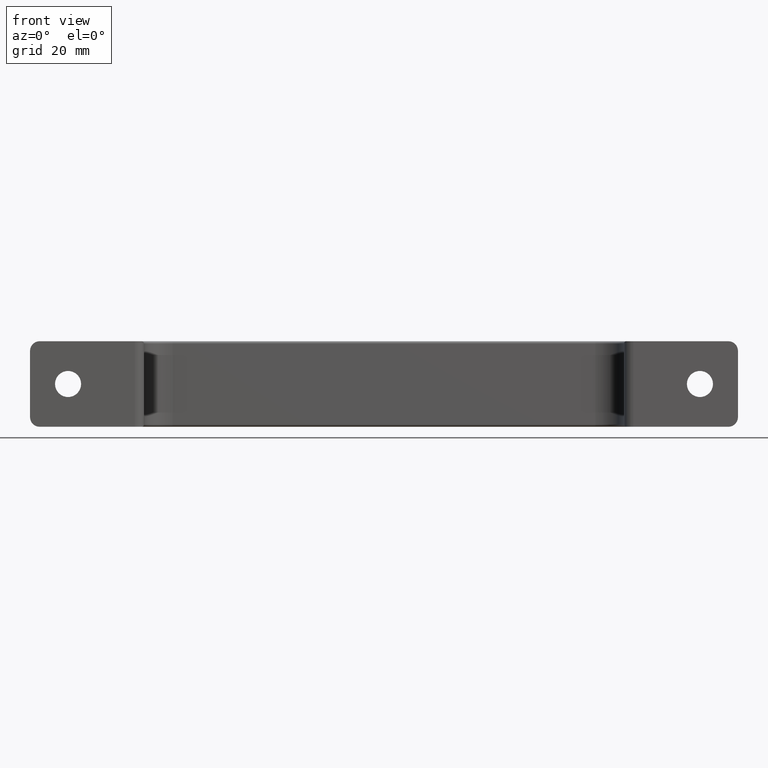
[diagram: clean part render]
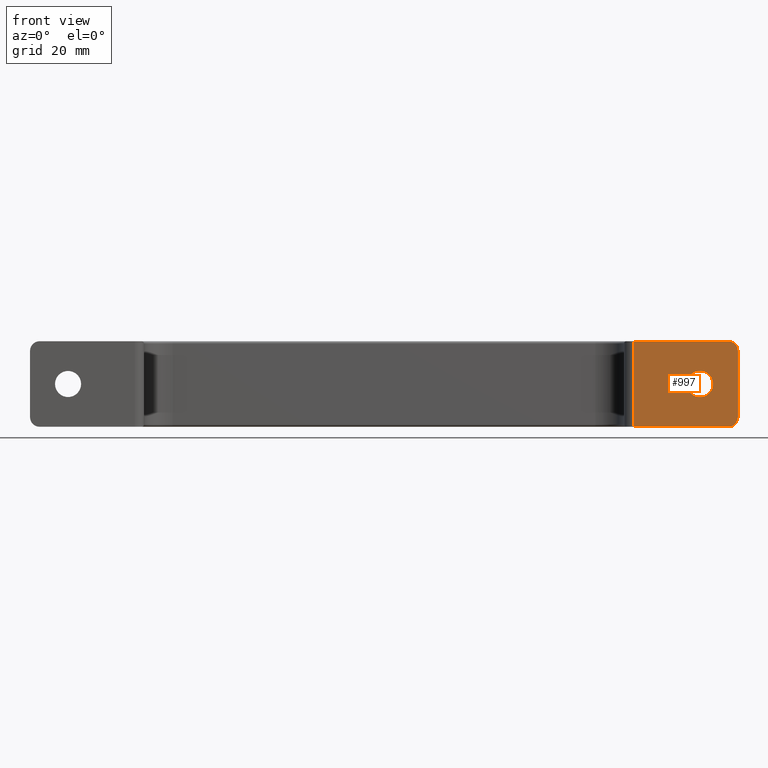
[diagram: same view with one face highlighted and labeled with its STEP entity id]
A machine part, front view. The second image highlights one B-rep face of the part: STEP entity #997.
In plain terms, the highlighted planar face has unit normal (-0, 1, 0).
Its self-contained STEP definition (entity closure, byte-faithful):
#23=PLANE('',#1099);
#50=LINE('',#1546,#116);
#74=LINE('',#1689,#140);
#75=LINE('',#1691,#141);
#76=LINE('',#1694,#142);
#116=VECTOR('',#1192,18.);
#140=VECTOR('',#1326,14.);
#141=VECTOR('',#1329,20.);
#142=VECTOR('',#1332,20.);
#216=FACE_BOUND('',#315,.T.);
#247=FACE_OUTER_BOUND('',#314,.T.);
#314=EDGE_LOOP('',(#778,#779,#780,#781,#782,#783));
#315=EDGE_LOOP('',(#784));
#359=CIRCLE('',#1041,2.75);
#394=CIRCLE('',#1097,2.);
#395=CIRCLE('',#1100,2.);
#437=VERTEX_POINT('',#1526);
#441=VERTEX_POINT('',#1543);
#442=VERTEX_POINT('',#1545);
#476=VERTEX_POINT('',#1681);
#477=VERTEX_POINT('',#1683);
#478=VERTEX_POINT('',#1687);
#479=VERTEX_POINT('',#1692);
#527=EDGE_CURVE('',#437,#437,#359,.T.);
#531=EDGE_CURVE('',#442,#441,#50,.T.);
#587=EDGE_CURVE('',#477,#476,#394,.T.);
#590=EDGE_CURVE('',#478,#476,#74,.T.);
#591=EDGE_CURVE('',#441,#477,#75,.T.);
#592=EDGE_CURVE('',#478,#479,#395,.T.);
#593=EDGE_CURVE('',#479,#442,#76,.T.);
#778=ORIENTED_EDGE('',*,*,#531,.T.);
#779=ORIENTED_EDGE('',*,*,#591,.T.);
#780=ORIENTED_EDGE('',*,*,#587,.T.);
#781=ORIENTED_EDGE('',*,*,#590,.F.);
#782=ORIENTED_EDGE('',*,*,#592,.T.);
#783=ORIENTED_EDGE('',*,*,#593,.T.);
#784=ORIENTED_EDGE('',*,*,#527,.F.);
#997=ADVANCED_FACE('',(#247,#216),#23,.F.);
#1041=AXIS2_PLACEMENT_3D('',#1527,#1185,#1186);
#1097=AXIS2_PLACEMENT_3D('',#1684,#1320,#1321);
#1099=AXIS2_PLACEMENT_3D('',#1690,#1327,#1328);
#1100=AXIS2_PLACEMENT_3D('',#1693,#1330,#1331);
#1185=DIRECTION('center_axis',(2.71170936169723E-31,-1.,0.));
#1186=DIRECTION('ref_axis',(-1.,2.77555756156289E-16,-9.19925226917395E-17));
#1192=DIRECTION('',(0.,0.,-1.));
#1320=DIRECTION('center_axis',(2.71170936169723E-31,-1.,0.));
#1321=DIRECTION('ref_axis',(0.707106781186547,0.,-0.707106781186548));
#1326=DIRECTION('',(0.,0.,-1.));
#1327=DIRECTION('center_axis',(-2.71170936169723E-31,1.,0.));
#1328=DIRECTION('ref_axis',(-1.,-2.71170936169723E-31,0.));
#1329=DIRECTION('',(1.,2.71170936169723E-31,0.));
#1330=DIRECTION('center_axis',(2.71170936169723E-31,-1.,0.));
#1331=DIRECTION('ref_axis',(0.707106781186547,0.,0.707106781186548));
#1332=DIRECTION('',(-1.,-2.71170936169723E-31,0.));
#1526=CARTESIAN_POINT('',(143.75,-7.63278329429795E-16,1.69998033179296E-15));
#1527=CARTESIAN_POINT('Origin',(141.,0.,1.11022302462516E-15));
#1543=CARTESIAN_POINT('',(127.,-5.9657605957339E-30,-9.));
#1545=CARTESIAN_POINT('',(127.,-5.9657605957339E-30,9.));
#1546=CARTESIAN_POINT('',(127.,0.,0.));
#1681=CARTESIAN_POINT('',(149.,0.,-7.));
#1683=CARTESIAN_POINT('',(147.,-5.42341872339445E-31,-9.));
#1684=CARTESIAN_POINT('Origin',(147.,0.,-7.));
#1687=CARTESIAN_POINT('',(149.,0.,7.));
#1689=CARTESIAN_POINT('',(149.,0.,0.));
#1690=CARTESIAN_POINT('Origin',(149.,0.,0.));
#1691=CARTESIAN_POINT('',(125.,-6.50810246807334E-30,-9.));
#1692=CARTESIAN_POINT('',(147.,-5.42341872339445E-31,9.));
#1693=CARTESIAN_POINT('Origin',(147.,0.,7.));
#1694=CARTESIAN_POINT('',(125.,-6.50810246807334E-30,9.));